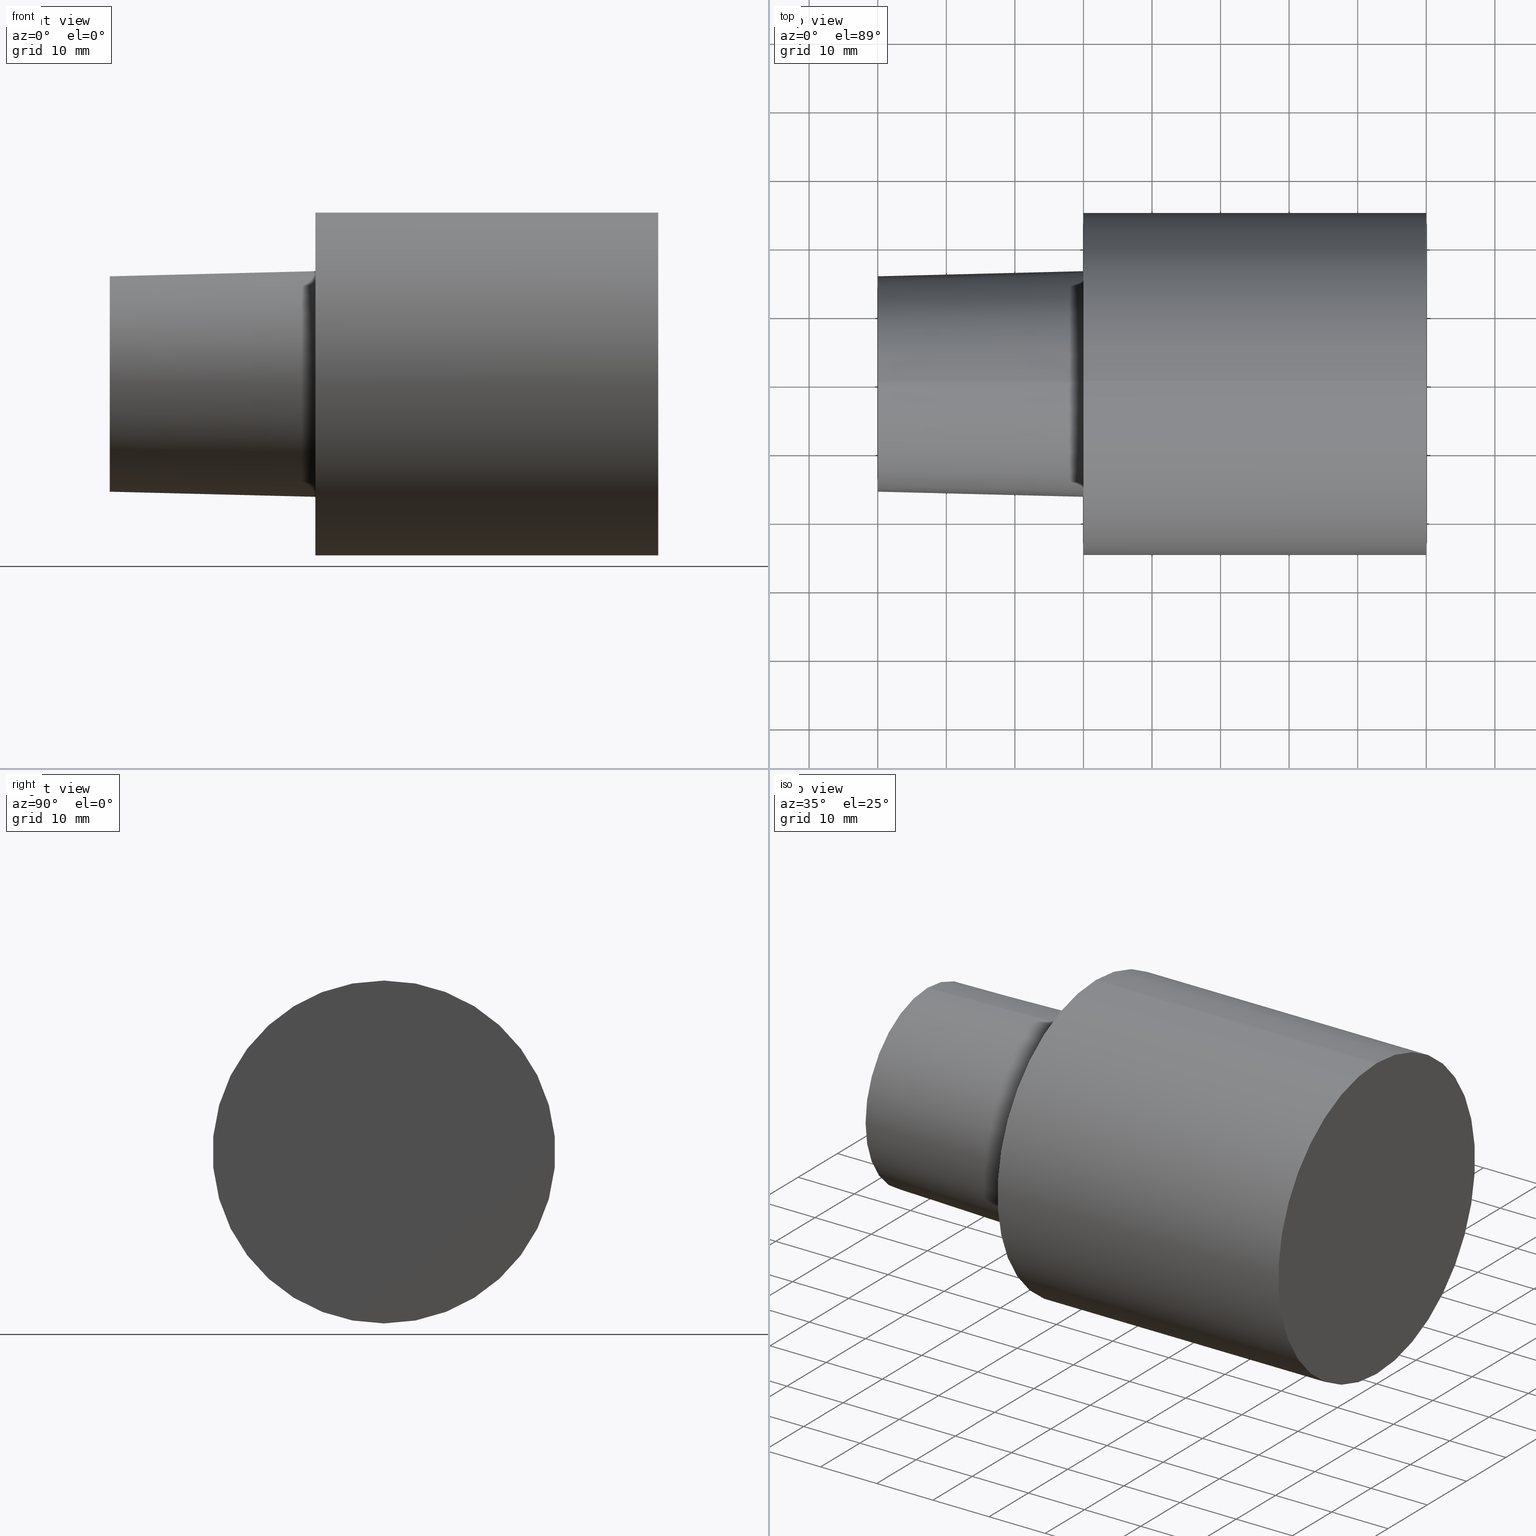
[diagram: canonical four-view strip — front | top / right | iso, engineering-drawing reading convention]
A machine part, canonical four-view strip (front | top / right | iso — engineering-drawing reading convention). The complete STEP part file that produces these views, byte-faithful:
ISO-10303-21;
HEADER;
FILE_DESCRIPTION (( 'STEP AP203' ),
    '1' );
FILE_NAME ('C5-F50-50.stp',
    '2022-03-11T15:27:12',
    ( '' ),
    ( '' ),
    'SwSTEP 2.0',
    'SolidWorks 2021',
    '' );
FILE_SCHEMA (( 'CONFIG_CONTROL_DESIGN' ));
ENDSEC;

DATA;
#1 = MECHANICAL_CONTEXT ( 'NONE', #255, 'mechanical' ) ;
#2 = PERSON_AND_ORGANIZATION ( #164, #86 ) ;
#3 = DIRECTION ( 'NONE',  ( 1.000000000000000000, 0.000000000000000000, 0.000000000000000000 ) ) ;
#4 = DATE_AND_TIME ( #63, #61 ) ;
#5 = PERSON_AND_ORGANIZATION ( #164, #86 ) ;
#6 = ORIENTED_EDGE ( 'NONE', *, *, #42, .T. ) ;
#7 = PERSON_AND_ORGANIZATION_ROLE ( 'creator' ) ;
#8 = SHAPE_DEFINITION_REPRESENTATION ( #76, #10 ) ;
#9 = PERSON_AND_ORGANIZATION ( #164, #86 ) ;
#10 = ADVANCED_BREP_SHAPE_REPRESENTATION ( 'C5-F50-50', ( #94, #217 ), #250 ) ;
#11 = FACE_OUTER_BOUND ( 'NONE', #47, .T. ) ;
#12 = ADVANCED_FACE ( 'NONE', ( #197, #50 ), #226, .F. ) ;
#13 = AXIS2_PLACEMENT_3D ( 'NONE', #96, #116, #143 ) ;
#14 = EDGE_LOOP ( 'NONE', ( #6, #246 ) ) ;
#15 = DIRECTION ( 'NONE',  ( -1.000000000000000000, 0.000000000000000000, 0.000000000000000000 ) ) ;
#16 = DIRECTION ( 'NONE',  ( 0.000000000000000000, 0.000000000000000000, 1.000000000000000000 ) ) ;
#17 = DIRECTION ( 'NONE',  ( 0.000000000000000000, 1.000000000000000000, 0.000000000000000000 ) ) ;
#18 = PLANE ( 'NONE',  #159 ) ;
#19 = LINE ( 'NONE', #162, #45 ) ;
#20 = ADVANCED_FACE ( 'NONE', ( #129 ), #233, .T. ) ;
#21 = CARTESIAN_POINT ( 'NONE',  ( 0.000000000000000000, 0.000000000000000000, -16.45500658257258664 ) ) ;
#22 = AXIS2_PLACEMENT_3D ( 'NONE', #100, #43, #236 ) ;
#23 = DESIGN_CONTEXT ( 'detailed design', #187, 'design' ) ;
#24 = APPROVAL ( #234, 'UNSPECIFIED' ) ;
#25 = PERSON_AND_ORGANIZATION_ROLE ( 'creator' ) ;
#26 = AXIS2_PLACEMENT_3D ( 'NONE', #229, #192, #49 ) ;
#27 = APPROVAL_DATE_TIME ( #102, #169 ) ;
#28 = VERTEX_POINT ( 'NONE', #214 ) ;
#29 = DATE_AND_TIME ( #121, #139 ) ;
#30 = SECURITY_CLASSIFICATION ( '', '', #181 ) ;
#31 = EDGE_LOOP ( 'NONE', ( #148, #104, #107, #95 ) ) ;
#32 = CARTESIAN_POINT ( 'NONE',  ( -29.99999996940000102, 0.000000000000000000, 0.000000000000000000 ) ) ;
#33 = FACE_OUTER_BOUND ( 'NONE', #31, .T. ) ;
#34 = ORIENTED_EDGE ( 'NONE', *, *, #177, .T. ) ;
#35 = CARTESIAN_POINT ( 'NONE',  ( 0.000000000000000000, 3.061616994745535943E-15, -24.99999997449999967 ) ) ;
#36 = LINE ( 'NONE', #131, #41 ) ;
#37 = DATE_AND_TIME ( #218, #193 ) ;
#38 = EDGE_CURVE ( 'NONE', #166, #53, #232, .T. ) ;
#39 = APPLICATION_PROTOCOL_DEFINITION ( 'international standard', 'config_control_design', 1994, #255 ) ;
#40 = PRODUCT_DEFINITION_FORMATION_WITH_SPECIFIED_SOURCE ( 'ANY', '', #180, .NOT_KNOWN. ) ;
#41 = VECTOR ( 'NONE', #127, 1000.000000000000000 ) ;
#42 = EDGE_CURVE ( 'NONE', #207, #166, #109, .T. ) ;
#43 = DIRECTION ( 'NONE',  ( -1.000000000000000000, 0.000000000000000000, 0.000000000000000000 ) ) ;
#44 = PERSON_AND_ORGANIZATION_ROLE ( 'classification_officer' ) ;
#45 = VECTOR ( 'NONE', #77, 1000.000000000000000 ) ;
#46 = APPROVAL ( #224, 'UNSPECIFIED' ) ;
#47 = EDGE_LOOP ( 'NONE', ( #119, #186, #48, #242 ) ) ;
#48 = ORIENTED_EDGE ( 'NONE', *, *, #245, .T. ) ;
#49 = DIRECTION ( 'NONE',  ( 0.000000000000000000, 0.000000000000000000, 1.000000000000000000 ) ) ;
#50 = FACE_OUTER_BOUND ( 'NONE', #71, .T. ) ;
#51 = ADVANCED_FACE ( 'NONE', ( #33 ), #171, .T. ) ;
#52 = CLOSED_SHELL ( 'NONE', ( #240, #200, #12, #158, #209, #20, #51 ) ) ;
#53 = VERTEX_POINT ( 'NONE', #149 ) ;
#54 = DIRECTION ( 'NONE',  ( -1.000000000000000000, 0.000000000000000000, 0.000000000000000000 ) ) ;
#55 = DIRECTION ( 'NONE',  ( 0.000000000000000000, 0.000000000000000000, 1.000000000000000000 ) ) ;
#56 = COORDINATED_UNIVERSAL_TIME_OFFSET ( 6, 0, .BEHIND. ) ;
#57 = AXIS2_PLACEMENT_3D ( 'NONE', #117, #219, #178 ) ;
#58 = CARTESIAN_POINT ( 'NONE',  ( -29.99999996940000102, 0.000000000000000000, -15.70494056296217700 ) ) ;
#59 = UNCERTAINTY_MEASURE_WITH_UNIT (LENGTH_MEASURE( 1.000000000000000082E-05 ), #114, 'distance_accuracy_value', 'NONE');
#60 = CC_DESIGN_APPROVAL ( #46, ( #30 ) ) ;
#61 = LOCAL_TIME ( 9, 27, 12.00000000000000000, #208 ) ;
#62 = DIRECTION ( 'NONE',  ( 0.000000000000000000, 0.000000000000000000, 1.000000000000000000 ) ) ;
#63 = CALENDAR_DATE ( 2022, 11, 3 ) ;
#64 = EDGE_CURVE ( 'NONE', #53, #170, #65, .T. ) ;
#65 = CIRCLE ( 'NONE', #167, 16.45500658257258664 ) ;
#66 = APPROVAL_ROLE ( '' ) ;
#67 = EDGE_CURVE ( 'NONE', #28, #113, #179, .T. ) ;
#68 = PERSON_AND_ORGANIZATION ( #164, #86 ) ;
#69 = DIRECTION ( 'NONE',  ( 0.000000000000000000, 0.000000000000000000, -1.000000000000000000 ) ) ;
#70 = CARTESIAN_POINT ( 'NONE',  ( -29.99999996940000102, 0.000000000000000000, 0.000000000000000000 ) ) ;
#71 = EDGE_LOOP ( 'NONE', ( #34, #248 ) ) ;
#72 = LOCAL_TIME ( 9, 27, 12.00000000000000000, #124 ) ;
#73 = DIRECTION ( 'NONE',  ( -1.000000000000000000, 0.000000000000000000, 0.000000000000000000 ) ) ;
#74 = CARTESIAN_POINT ( 'NONE',  ( 49.99999994899999933, 0.000000000000000000, 24.99999997449999967 ) ) ;
#75 = CC_DESIGN_DATE_AND_TIME_ASSIGNMENT ( #146, #185, ( #123 ) ) ;
#76 = PRODUCT_DEFINITION_SHAPE ( 'NONE', 'NONE',  #123 ) ;
#77 = DIRECTION ( 'NONE',  ( -1.000000000000000000, 0.000000000000000000, 0.000000000000000000 ) ) ;
#78 = CIRCLE ( 'NONE', #145, 24.99999997449999967 ) ;
#79 = CC_DESIGN_PERSON_AND_ORGANIZATION_ASSIGNMENT ( #204, #25, ( #123 ) ) ;
#80 = DIRECTION ( 'NONE',  ( 0.000000000000000000, 0.000000000000000000, 1.000000000000000000 ) ) ;
#81 = PERSON_AND_ORGANIZATION_ROLE ( 'design_owner' ) ;
#82 = APPLICATION_PROTOCOL_DEFINITION ( 'international standard', 'config_control_design', 1994, #187 ) ;
#83 = APPROVAL_DATE_TIME ( #37, #24 ) ;
#84 = CALENDAR_DATE ( 2022, 11, 3 ) ;
#85 = EDGE_LOOP ( 'NONE', ( #122, #225 ) ) ;
#86 = ORGANIZATION ( 'UNSPECIFIED', 'UNSPECIFIED', '' ) ;
#87 = CIRCLE ( 'NONE', #57, 24.99999997449999967 ) ;
#88 = PERSON_AND_ORGANIZATION ( #164, #86 ) ;
#89 = CARTESIAN_POINT ( 'NONE',  ( 0.000000000000000000, 24.99999997449999967, 0.000000000000000000 ) ) ;
#90 = AXIS2_PLACEMENT_3D ( 'NONE', #133, #216, #69 ) ;
#91 = CARTESIAN_POINT ( 'NONE',  ( -29.99999996940000102, 0.000000000000000000, 0.000000000000000000 ) ) ;
#92 = DIRECTION ( 'NONE',  ( -1.000000000000000000, 0.000000000000000000, 0.000000000000000000 ) ) ;
#93 = DIRECTION ( 'NONE',  ( -1.000000000000000000, 0.000000000000000000, 0.000000000000000000 ) ) ;
#94 = MANIFOLD_SOLID_BREP ( 'Scale1', #52 ) ;
#95 = ORIENTED_EDGE ( 'NONE', *, *, #249, .F. ) ;
#96 = CARTESIAN_POINT ( 'NONE',  ( 0.000000000000000000, 0.000000000000000000, 0.000000000000000000 ) ) ;
#97 = PLANE ( 'NONE',  #120 ) ;
#98 = EDGE_CURVE ( 'NONE', #166, #207, #235, .T. ) ;
#99 = AXIS2_PLACEMENT_3D ( 'NONE', #247, #73, #16 ) ;
#100 = CARTESIAN_POINT ( 'NONE',  ( 0.000000000000000000, 0.000000000000000000, 0.000000000000000000 ) ) ;
#101 = VECTOR ( 'NONE', #150, 999.9999999999998863 ) ;
#102 = DATE_AND_TIME ( #84, #72 ) ;
#103 = ORIENTED_EDGE ( 'NONE', *, *, #38, .F. ) ;
#104 = ORIENTED_EDGE ( 'NONE', *, *, #38, .T. ) ;
#105 = APPROVAL_DATE_TIME ( #29, #46 ) ;
#106 = ORIENTED_EDGE ( 'NONE', *, *, #42, .F. ) ;
#107 = ORIENTED_EDGE ( 'NONE', *, *, #64, .T. ) ;
#108 = DIRECTION ( 'NONE',  ( -1.000000000000000000, 0.000000000000000000, 0.000000000000000000 ) ) ;
#109 = CIRCLE ( 'NONE', #221, 15.70494056296217700 ) ;
#110 = CARTESIAN_POINT ( 'NONE',  ( 0.000000000000000000, 0.000000000000000000, 0.000000000000000000 ) ) ;
#111 = DIRECTION ( 'NONE',  ( 0.000000000000000000, 0.000000000000000000, 1.000000000000000000 ) ) ;
#112 = CC_DESIGN_PERSON_AND_ORGANIZATION_ASSIGNMENT ( #5, #168, ( #40 ) ) ;
#113 = VERTEX_POINT ( 'NONE', #74 ) ;
#114 =( LENGTH_UNIT ( ) NAMED_UNIT ( * ) SI_UNIT ( .MILLI., .METRE. ) );
#115 = DIRECTION ( 'NONE',  ( 0.000000000000000000, 1.000000000000000000, 0.000000000000000000 ) ) ;
#116 = DIRECTION ( 'NONE',  ( 1.000000000000000000, 0.000000000000000000, 0.000000000000000000 ) ) ;
#117 = CARTESIAN_POINT ( 'NONE',  ( 49.99999994899999933, 0.000000000000000000, 0.000000000000000000 ) ) ;
#118 = COORDINATED_UNIVERSAL_TIME_OFFSET ( 6, 0, .BEHIND. ) ;
#119 = ORIENTED_EDGE ( 'NONE', *, *, #137, .F. ) ;
#120 = AXIS2_PLACEMENT_3D ( 'NONE', #135, #253, #80 ) ;
#121 = CALENDAR_DATE ( 2022, 11, 3 ) ;
#122 = ORIENTED_EDGE ( 'NONE', *, *, #144, .F. ) ;
#123 = PRODUCT_DEFINITION ( 'UNKNOWN', '', #40, #23 ) ;
#124 = COORDINATED_UNIVERSAL_TIME_OFFSET ( 6, 0, .BEHIND. ) ;
#125 = APPROVAL_PERSON_ORGANIZATION ( #223, #46, #66 ) ;
#126 = ORIENTED_EDGE ( 'NONE', *, *, #67, .F. ) ;
#127 = DIRECTION ( 'NONE',  ( -1.000000000000000000, 0.000000000000000000, 0.000000000000000000 ) ) ;
#128 = CC_DESIGN_SECURITY_CLASSIFICATION ( #30, ( #40 ) ) ;
#129 = FACE_OUTER_BOUND ( 'NONE', #173, .T. ) ;
#130 = AXIS2_PLACEMENT_3D ( 'NONE', #155, #54, #132 ) ;
#131 = CARTESIAN_POINT ( 'NONE',  ( -29.99999996940000102, 3.061616994745535943E-15, -24.99999997449999967 ) ) ;
#132 = DIRECTION ( 'NONE',  ( 0.000000000000000000, 0.000000000000000000, 1.000000000000000000 ) ) ;
#133 = CARTESIAN_POINT ( 'NONE',  ( 0.000000000000000000, 0.000000000000000000, 0.000000000000000000 ) ) ;
#134 = AXIS2_PLACEMENT_3D ( 'NONE', #32, #108, #62 ) ;
#135 = CARTESIAN_POINT ( 'NONE',  ( 49.99999994899999933, 0.000000000000000000, 0.000000000000000000 ) ) ;
#136 =( NAMED_UNIT ( * ) PLANE_ANGLE_UNIT ( ) SI_UNIT ( $, .RADIAN. ) );
#137 = EDGE_CURVE ( 'NONE', #28, #156, #36, .T. ) ;
#138 = FACE_OUTER_BOUND ( 'NONE', #241, .T. ) ;
#139 = LOCAL_TIME ( 9, 27, 12.00000000000000000, #182 ) ;
#140 = CC_DESIGN_APPROVAL ( #169, ( #40 ) ) ;
#141 = FACE_OUTER_BOUND ( 'NONE', #14, .T. ) ;
#142 = EDGE_CURVE ( 'NONE', #156, #172, #78, .T. ) ;
#143 = DIRECTION ( 'NONE',  ( 0.000000000000000000, 0.000000000000000000, -1.000000000000000000 ) ) ;
#144 = EDGE_CURVE ( 'NONE', #170, #53, #154, .T. ) ;
#145 = AXIS2_PLACEMENT_3D ( 'NONE', #213, #93, #111 ) ;
#146 = DATE_AND_TIME ( #190, #153 ) ;
#147 = DATE_TIME_ROLE ( 'classification_date' ) ;
#148 = ORIENTED_EDGE ( 'NONE', *, *, #98, .F. ) ;
#149 = CARTESIAN_POINT ( 'NONE',  ( 0.000000000000000000, 2.015157114129614578E-15, 16.45500658257258664 ) ) ;
#150 = DIRECTION ( 'NONE',  ( 0.9996875914402667540, 3.060929943787468651E-18, 0.02499438977767799372 ) ) ;
#151 = DIRECTION ( 'NONE',  ( 1.000000000000000000, 0.000000000000000000, 0.000000000000000000 ) ) ;
#152 = CC_DESIGN_PERSON_AND_ORGANIZATION_ASSIGNMENT ( #68, #7, ( #40 ) ) ;
#153 = LOCAL_TIME ( 9, 27, 12.00000000000000000, #118 ) ;
#154 = CIRCLE ( 'NONE', #130, 16.45500658257258664 ) ;
#155 = CARTESIAN_POINT ( 'NONE',  ( 0.000000000000000000, 0.000000000000000000, 0.000000000000000000 ) ) ;
#156 = VERTEX_POINT ( 'NONE', #35 ) ;
#157 = PERSON_AND_ORGANIZATION ( #164, #86 ) ;
#158 = ADVANCED_FACE ( 'NONE', ( #11 ), #211, .T. ) ;
#159 = AXIS2_PLACEMENT_3D ( 'NONE', #161, #203, #115 ) ;
#160 = CARTESIAN_POINT ( 'NONE',  ( -29.99999996940000102, 1.969228816626358703E-15, 15.70494056296217700 ) ) ;
#161 = CARTESIAN_POINT ( 'NONE',  ( -29.99999996940000102, 15.70494056296217700, 0.000000000000000000 ) ) ;
#162 = CARTESIAN_POINT ( 'NONE',  ( -29.99999996940000102, 0.000000000000000000, 24.99999997449999967 ) ) ;
#163 = CC_DESIGN_PERSON_AND_ORGANIZATION_ASSIGNMENT ( #2, #81, ( #180 ) ) ;
#164 = PERSON ( 'UNSPECIFIED', 'UNSPECIFIED', 'UNSPECIFIED', ('UNSPECIFIED'), ('UNSPECIFIED'), ('UNSPECIFIED') ) ;
#165 = APPROVAL_ROLE ( '' ) ;
#166 = VERTEX_POINT ( 'NONE', #160 ) ;
#167 = AXIS2_PLACEMENT_3D ( 'NONE', #110, #92, #195 ) ;
#168 = PERSON_AND_ORGANIZATION_ROLE ( 'design_supplier' ) ;
#169 = APPROVAL ( #222, 'UNSPECIFIED' ) ;
#170 = VERTEX_POINT ( 'NONE', #21 ) ;
#171 = CONICAL_SURFACE ( 'NONE', #90, 16.45500658257258664, 0.02499699292341668252 ) ;
#172 = VERTEX_POINT ( 'NONE', #220 ) ;
#173 = EDGE_LOOP ( 'NONE', ( #174, #244, #196, #183 ) ) ;
#174 = ORIENTED_EDGE ( 'NONE', *, *, #215, .T. ) ;
#175 = DIRECTION ( 'NONE',  ( -1.000000000000000000, 0.000000000000000000, 0.000000000000000000 ) ) ;
#176 = LINE ( 'NONE', #238, #194 ) ;
#177 = EDGE_CURVE ( 'NONE', #172, #156, #189, .T. ) ;
#178 = DIRECTION ( 'NONE',  ( 0.000000000000000000, 0.000000000000000000, 1.000000000000000000 ) ) ;
#179 = CIRCLE ( 'NONE', #99, 24.99999997449999967 ) ;
#180 = PRODUCT ( 'C5-F50-50', 'C5-F50-50', '', ( #1 ) ) ;
#181 = SECURITY_CLASSIFICATION_LEVEL ( 'unclassified' ) ;
#182 = COORDINATED_UNIVERSAL_TIME_OFFSET ( 6, 0, .BEHIND. ) ;
#183 = ORIENTED_EDGE ( 'NONE', *, *, #245, .F. ) ;
#184 = CC_DESIGN_DATE_AND_TIME_ASSIGNMENT ( #4, #147, ( #30 ) ) ;
#185 = DATE_TIME_ROLE ( 'creation_date' ) ;
#186 = ORIENTED_EDGE ( 'NONE', *, *, #67, .T. ) ;
#187 = APPLICATION_CONTEXT ( 'configuration controlled 3d designs of mechanical parts and assemblies' ) ;
#188 = APPROVAL_PERSON_ORGANIZATION ( #88, #169, #206 ) ;
#189 = CIRCLE ( 'NONE', #22, 24.99999997449999967 ) ;
#190 = CALENDAR_DATE ( 2022, 11, 3 ) ;
#191 = EDGE_LOOP ( 'NONE', ( #210, #126 ) ) ;
#192 = DIRECTION ( 'NONE',  ( -1.000000000000000000, 0.000000000000000000, 0.000000000000000000 ) ) ;
#193 = LOCAL_TIME ( 9, 27, 12.00000000000000000, #56 ) ;
#194 = VECTOR ( 'NONE', #237, 999.9999999999998863 ) ;
#195 = DIRECTION ( 'NONE',  ( 0.000000000000000000, 0.000000000000000000, 1.000000000000000000 ) ) ;
#196 = ORIENTED_EDGE ( 'NONE', *, *, #177, .F. ) ;
#197 = FACE_BOUND ( 'NONE', #85, .T. ) ;
#198 = DIRECTION ( 'NONE',  ( 0.000000000000000000, 0.000000000000000000, 1.000000000000000000 ) ) ;
#199 = FACE_OUTER_BOUND ( 'NONE', #191, .T. ) ;
#200 = ADVANCED_FACE ( 'NONE', ( #138 ), #231, .T. ) ;
#201 = AXIS2_PLACEMENT_3D ( 'NONE', #89, #151, #17 ) ;
#202 = CARTESIAN_POINT ( 'NONE',  ( 0.000000000000000000, 0.000000000000000000, 0.000000000000000000 ) ) ;
#203 = DIRECTION ( 'NONE',  ( 1.000000000000000000, 0.000000000000000000, 0.000000000000000000 ) ) ;
#204 = PERSON_AND_ORGANIZATION ( #164, #86 ) ;
#205 = AXIS2_PLACEMENT_3D ( 'NONE', #70, #175, #55 ) ;
#206 = APPROVAL_ROLE ( '' ) ;
#207 = VERTEX_POINT ( 'NONE', #58 ) ;
#208 = COORDINATED_UNIVERSAL_TIME_OFFSET ( 6, 0, .BEHIND. ) ;
#209 = ADVANCED_FACE ( 'NONE', ( #199 ), #97, .F. ) ;
#210 = ORIENTED_EDGE ( 'NONE', *, *, #215, .F. ) ;
#211 = CYLINDRICAL_SURFACE ( 'NONE', #134, 24.99999997449999967 ) ;
#212 = CARTESIAN_POINT ( 'NONE',  ( 0.000000000000000000, 2.015157114129614578E-15, 16.45500658257258664 ) ) ;
#213 = CARTESIAN_POINT ( 'NONE',  ( 0.000000000000000000, 0.000000000000000000, 0.000000000000000000 ) ) ;
#214 = CARTESIAN_POINT ( 'NONE',  ( 49.99999994899999933, 3.061616994745535943E-15, -24.99999997449999967 ) ) ;
#215 = EDGE_CURVE ( 'NONE', #113, #28, #87, .T. ) ;
#216 = DIRECTION ( 'NONE',  ( 1.000000000000000000, 0.000000000000000000, 0.000000000000000000 ) ) ;
#217 = AXIS2_PLACEMENT_3D ( 'NONE', #202, #198, #3 ) ;
#218 = CALENDAR_DATE ( 2022, 11, 3 ) ;
#219 = DIRECTION ( 'NONE',  ( -1.000000000000000000, 0.000000000000000000, 0.000000000000000000 ) ) ;
#220 = CARTESIAN_POINT ( 'NONE',  ( 0.000000000000000000, 0.000000000000000000, 24.99999997449999967 ) ) ;
#221 = AXIS2_PLACEMENT_3D ( 'NONE', #91, #15, #251 ) ;
#222 = APPROVAL_STATUS ( 'not_yet_approved' ) ;
#223 = PERSON_AND_ORGANIZATION ( #164, #86 ) ;
#224 = APPROVAL_STATUS ( 'not_yet_approved' ) ;
#225 = ORIENTED_EDGE ( 'NONE', *, *, #64, .F. ) ;
#226 = PLANE ( 'NONE',  #201 ) ;
#227 = CC_DESIGN_PERSON_AND_ORGANIZATION_ASSIGNMENT ( #9, #44, ( #30 ) ) ;
#228 = ORIENTED_EDGE ( 'NONE', *, *, #144, .T. ) ;
#229 = CARTESIAN_POINT ( 'NONE',  ( -29.99999996940000102, 0.000000000000000000, 0.000000000000000000 ) ) ;
#230 = CC_DESIGN_APPROVAL ( #24, ( #123 ) ) ;
#231 = CONICAL_SURFACE ( 'NONE', #13, 16.45500658257258664, 0.02499699292341668252 ) ;
#232 = LINE ( 'NONE', #212, #101 ) ;
#233 = CYLINDRICAL_SURFACE ( 'NONE', #205, 24.99999997449999967 ) ;
#234 = APPROVAL_STATUS ( 'not_yet_approved' ) ;
#235 = CIRCLE ( 'NONE', #26, 15.70494056296217700 ) ;
#236 = DIRECTION ( 'NONE',  ( 0.000000000000000000, 0.000000000000000000, 1.000000000000000000 ) ) ;
#237 = DIRECTION ( 'NONE',  ( 0.9996875914402667540, 0.000000000000000000, -0.02499438977767799372 ) ) ;
#238 = CARTESIAN_POINT ( 'NONE',  ( 0.000000000000000000, 0.000000000000000000, -16.45500658257258664 ) ) ;
#239 = ORIENTED_EDGE ( 'NONE', *, *, #249, .T. ) ;
#240 = ADVANCED_FACE ( 'NONE', ( #141 ), #18, .F. ) ;
#241 = EDGE_LOOP ( 'NONE', ( #103, #106, #239, #228 ) ) ;
#242 = ORIENTED_EDGE ( 'NONE', *, *, #142, .F. ) ;
#243 = APPROVAL_PERSON_ORGANIZATION ( #157, #24, #165 ) ;
#244 = ORIENTED_EDGE ( 'NONE', *, *, #137, .T. ) ;
#245 = EDGE_CURVE ( 'NONE', #113, #172, #19, .T. ) ;
#246 = ORIENTED_EDGE ( 'NONE', *, *, #98, .T. ) ;
#247 = CARTESIAN_POINT ( 'NONE',  ( 49.99999994899999933, 0.000000000000000000, 0.000000000000000000 ) ) ;
#248 = ORIENTED_EDGE ( 'NONE', *, *, #142, .T. ) ;
#249 = EDGE_CURVE ( 'NONE', #207, #170, #176, .T. ) ;
#250 =( GEOMETRIC_REPRESENTATION_CONTEXT ( 3 ) GLOBAL_UNCERTAINTY_ASSIGNED_CONTEXT ( ( #59 ) ) GLOBAL_UNIT_ASSIGNED_CONTEXT ( ( #114, #136, #252 ) ) REPRESENTATION_CONTEXT ( 'NONE', 'WORKASPACE' ) );
#251 = DIRECTION ( 'NONE',  ( 0.000000000000000000, 0.000000000000000000, 1.000000000000000000 ) ) ;
#252 =( NAMED_UNIT ( * ) SI_UNIT ( $, .STERADIAN. ) SOLID_ANGLE_UNIT ( ) );
#253 = DIRECTION ( 'NONE',  ( -1.000000000000000000, 0.000000000000000000, 0.000000000000000000 ) ) ;
#254 = PRODUCT_RELATED_PRODUCT_CATEGORY ( 'detail', '', ( #180 ) ) ;
#255 = APPLICATION_CONTEXT ( 'configuration controlled 3d designs of mechanical parts and assemblies' ) ;
ENDSEC;
END-ISO-10303-21;
